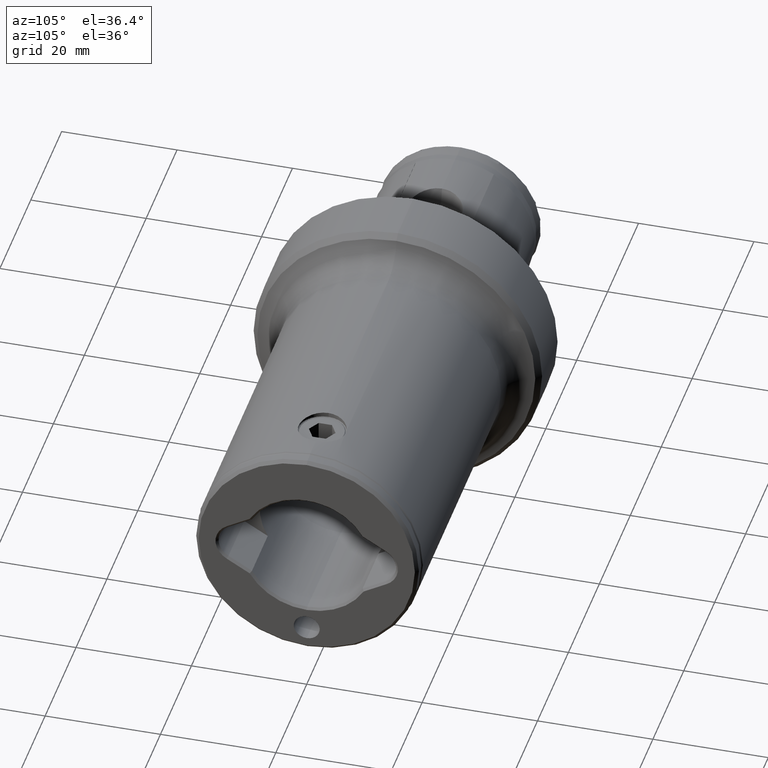
[diagram: clean part render]
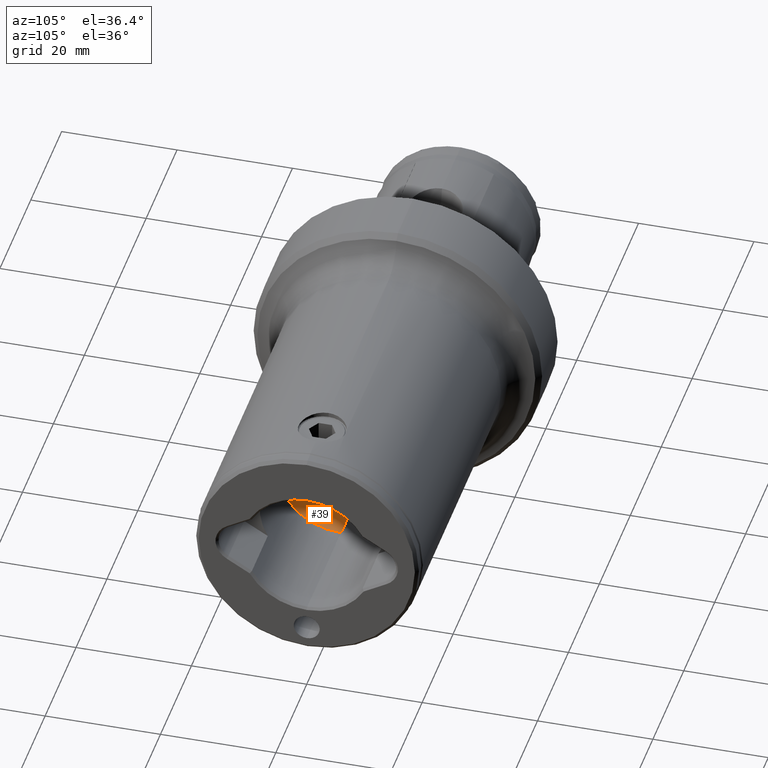
[diagram: same view with one face highlighted and labeled with its STEP entity id]
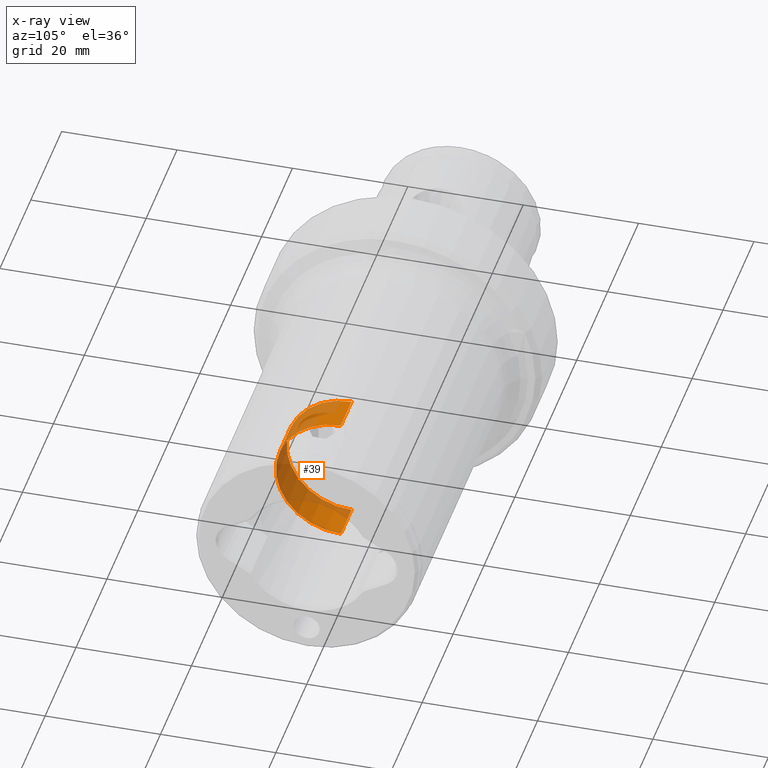
[diagram: x-ray of the same camera — body ghosted, the highlighted face saturated]
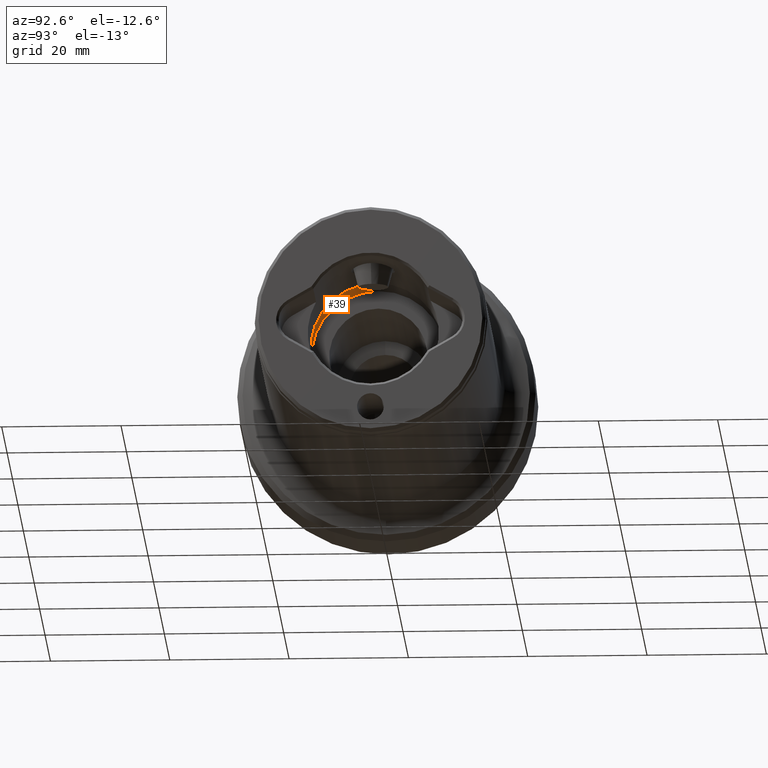
[diagram: same view with one face highlighted and labeled with its STEP entity id]
A machine part, auxiliary view. The second image highlights one B-rep face of the part: STEP entity #39.
The next image is the same camera in x-ray: the body ghosted, the highlighted face saturated — about 58% of this face is hidden behind the body in this view.
A second angle (auxiliary view) of the same face is appended — the face is thin or edge-on in the first view.
In plain terms, the highlighted cylindrical surface (partial cylindrical patch) has radius 11.25 mm, axis along (-1, 0, 0).
Its self-contained STEP definition (entity closure, byte-faithful):
#39 = ADVANCED_FACE ( 'NONE', ( #483 ), #1493, .F. ) ;
#280 = LINE ( 'NONE', #4684, #2447 ) ;
#468 = CARTESIAN_POINT ( 'NONE',  ( 71.00000000000001400, 0.0000000000000000000, 0.0000000000000000000 ) ) ;
#483 = FACE_OUTER_BOUND ( 'NONE', #4679, .T. ) ;
#754 = CARTESIAN_POINT ( 'NONE',  ( 78.00000000000001400, 1.377727649040772600E-015, -11.25000000000000200 ) ) ;
#773 = DIRECTION ( 'NONE',  ( -1.000000000000000000, 0.0000000000000000000, 0.0000000000000000000 ) ) ;
#869 = DIRECTION ( 'NONE',  ( 0.0000000000000000000, 0.0000000000000000000, -1.000000000000000000 ) ) ;
#1103 = DIRECTION ( 'NONE',  ( 1.000000000000000000, 0.0000000000000000000, 0.0000000000000000000 ) ) ;
#1326 = VERTEX_POINT ( 'NONE', #3796 ) ;
#1448 = LINE ( 'NONE', #754, #2415 ) ;
#1493 = CYLINDRICAL_SURFACE ( 'NONE', #3933, 11.25000000000000200 ) ;
#1829 = VERTEX_POINT ( 'NONE', #3031 ) ;
#1865 = EDGE_CURVE ( 'NONE', #1326, #2571, #280, .T. ) ;
#2208 = DIRECTION ( 'NONE',  ( -1.000000000000000000, 0.0000000000000000000, 0.0000000000000000000 ) ) ;
#2283 = CIRCLE ( 'NONE', #3985, 11.25000000000000200 ) ;
#2415 = VECTOR ( 'NONE', #773, 1000.000000000000000 ) ;
#2447 = VECTOR ( 'NONE', #2208, 1000.000000000000000 ) ;
#2571 = VERTEX_POINT ( 'NONE', #2959 ) ;
#2717 = DIRECTION ( 'NONE',  ( -1.000000000000000000, 0.0000000000000000000, 0.0000000000000000000 ) ) ;
#2959 = CARTESIAN_POINT ( 'NONE',  ( 71.00000000000001400, 0.0000000000000000000, 11.25000000000000200 ) ) ;
#3015 = ORIENTED_EDGE ( 'NONE', *, *, #3611, .T. ) ;
#3031 = CARTESIAN_POINT ( 'NONE',  ( 78.00000000000001400, 1.377727649040772600E-015, -11.25000000000000200 ) ) ;
#3339 = DIRECTION ( 'NONE',  ( 1.000000000000000000, 0.0000000000000000000, 0.0000000000000000000 ) ) ;
#3361 = AXIS2_PLACEMENT_3D ( 'NONE', #3575, #1103, #3990 ) ;
#3388 = ORIENTED_EDGE ( 'NONE', *, *, #1865, .F. ) ;
#3518 = DIRECTION ( 'NONE',  ( 0.0000000000000000000, 0.0000000000000000000, 1.000000000000000000 ) ) ;
#3575 = CARTESIAN_POINT ( 'NONE',  ( 78.00000000000001400, 0.0000000000000000000, 0.0000000000000000000 ) ) ;
#3611 = EDGE_CURVE ( 'NONE', #1326, #1829, #4914, .T. ) ;
#3796 = CARTESIAN_POINT ( 'NONE',  ( 78.00000000000001400, 0.0000000000000000000, 11.25000000000000200 ) ) ;
#3933 = AXIS2_PLACEMENT_3D ( 'NONE', #4769, #2717, #3518 ) ;
#3985 = AXIS2_PLACEMENT_3D ( 'NONE', #468, #3339, #869 ) ;
#3990 = DIRECTION ( 'NONE',  ( 0.0000000000000000000, 0.0000000000000000000, -1.000000000000000000 ) ) ;
#3992 = EDGE_CURVE ( 'NONE', #1829, #5198, #1448, .T. ) ;
#4084 = EDGE_CURVE ( 'NONE', #2571, #5198, #2283, .T. ) ;
#4214 = ORIENTED_EDGE ( 'NONE', *, *, #3992, .T. ) ;
#4341 = ORIENTED_EDGE ( 'NONE', *, *, #4084, .F. ) ;
#4414 = CARTESIAN_POINT ( 'NONE',  ( 71.00000000000001400, 1.377727649040772600E-015, -11.25000000000000200 ) ) ;
#4679 = EDGE_LOOP ( 'NONE', ( #3015, #4214, #4341, #3388 ) ) ;
#4684 = CARTESIAN_POINT ( 'NONE',  ( 78.00000000000001400, 0.0000000000000000000, 11.25000000000000200 ) ) ;
#4769 = CARTESIAN_POINT ( 'NONE',  ( 78.00000000000001400, 0.0000000000000000000, 0.0000000000000000000 ) ) ;
#4914 = CIRCLE ( 'NONE', #3361, 11.25000000000000200 ) ;
#5198 = VERTEX_POINT ( 'NONE', #4414 ) ;